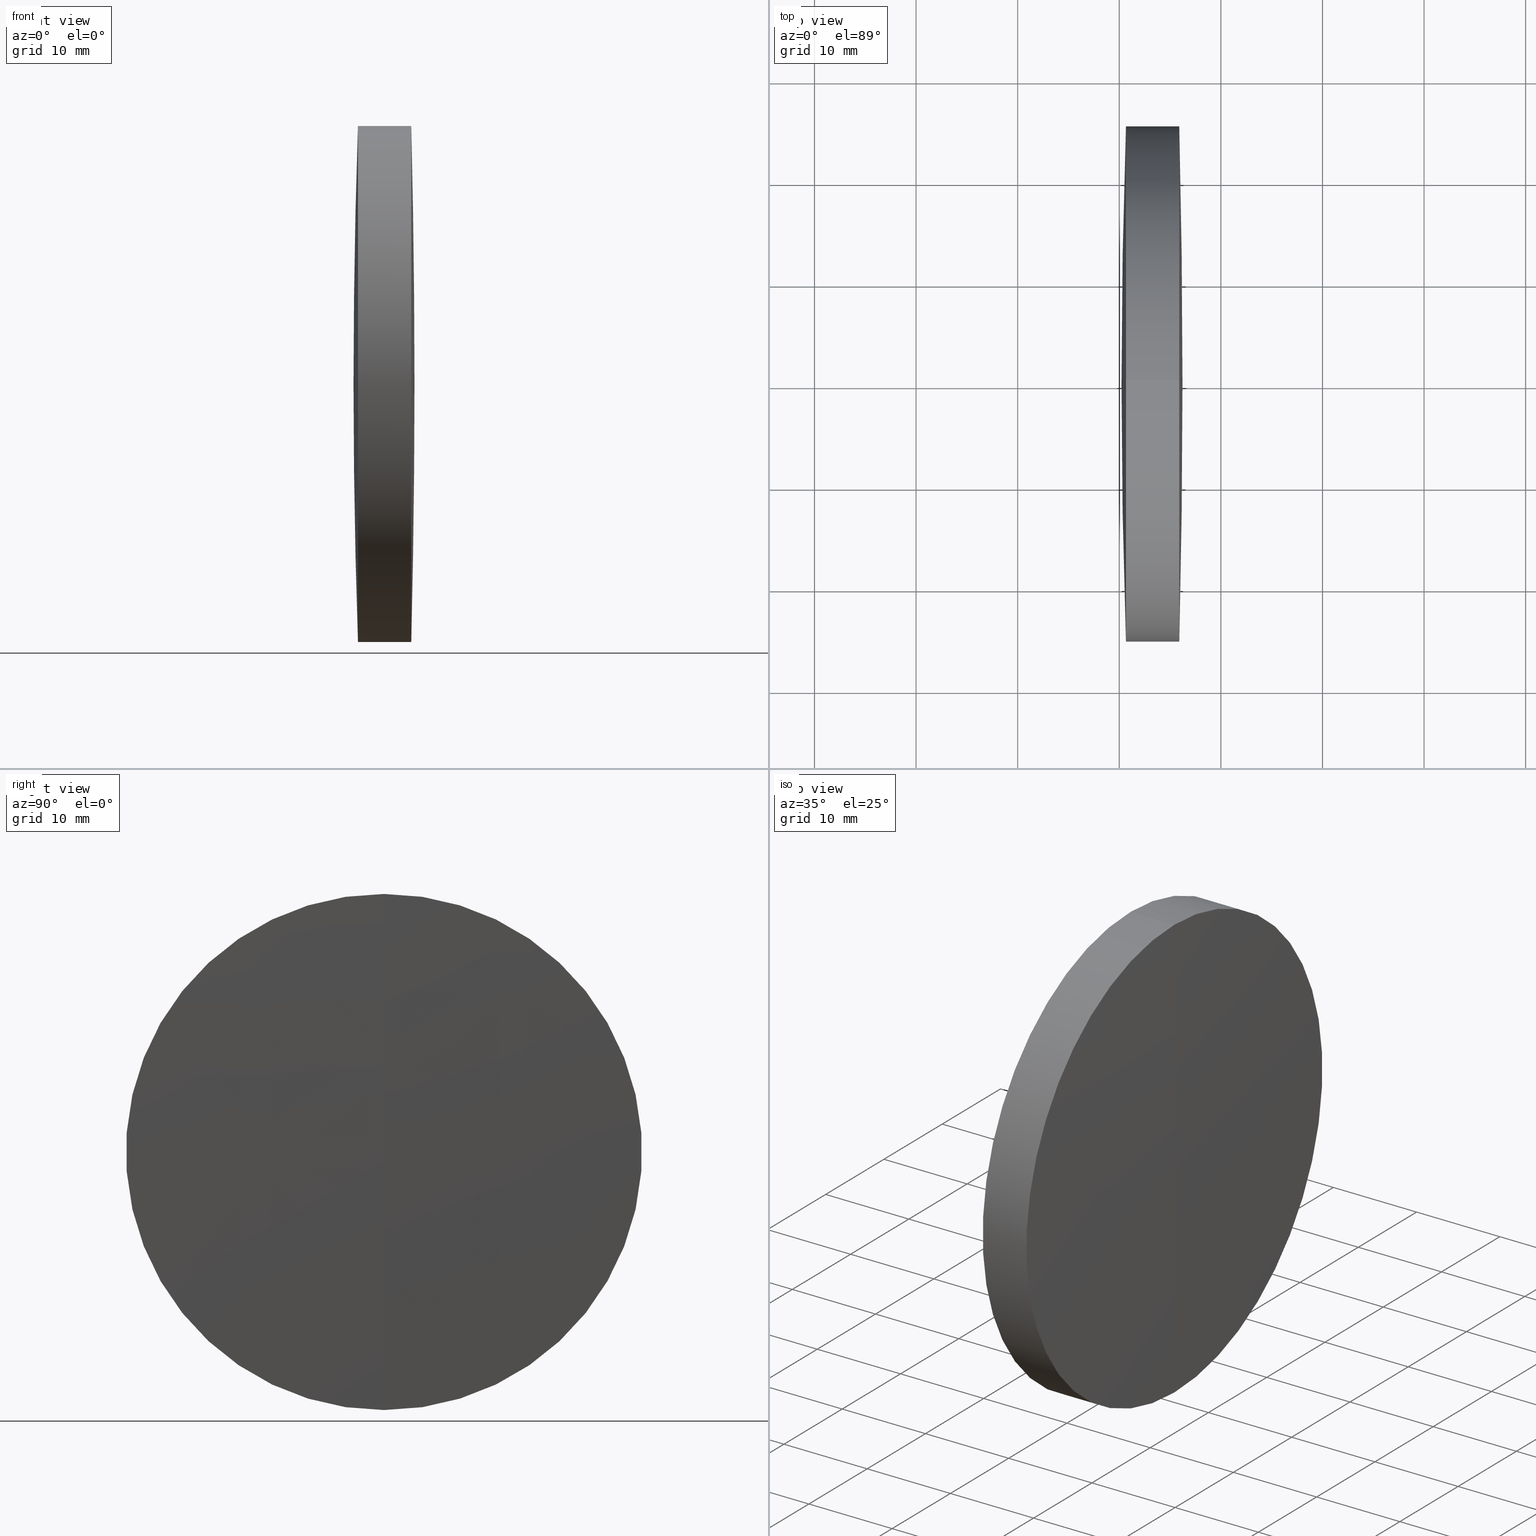
[diagram: canonical four-view strip — front | top / right | iso, engineering-drawing reading convention]
A machine part, canonical four-view strip (front | top / right | iso — engineering-drawing reading convention). The complete STEP part file that produces these views, byte-faithful:
ISO-10303-21;
HEADER;
FILE_DESCRIPTION (( 'STEP AP214' ),
    '1' );
FILE_NAME ('145095.STEP',
    '2019-05-28T01:34:47',
    ( 'user' ),
    ( '΢���й�' ),
    'SwSTEP 2.0',
    'SolidWorks 2016',
    '' );
FILE_SCHEMA (( 'AUTOMOTIVE_DESIGN' ));
ENDSEC;

DATA;
#1 = DIRECTION ( 'NONE',  ( 0.0000000000000000000, 0.0000000000000000000, -1.000000000000000000 ) ) ;
#2 = EDGE_LOOP ( 'NONE', ( #34, #65, #285, #180 ) ) ;
#3 = FACE_OUTER_BOUND ( 'NONE', #263, .T. ) ;
#4 = APPLICATION_CONTEXT ( 'automotive_design' ) ;
#5 =( LENGTH_UNIT ( ) NAMED_UNIT ( * ) SI_UNIT ( .MILLI., .METRE. ) );
#6 = CIRCLE ( 'NONE', #135, 738.4999999999998900 ) ;
#7 = AXIS2_PLACEMENT_3D ( 'NONE', #17, #173, #337 ) ;
#8 = VERTEX_POINT ( 'NONE', #244 ) ;
#9 = FACE_OUTER_BOUND ( 'NONE', #208, .T. ) ;
#10 = CIRCLE ( 'NONE', #313, 398.1000000000000200 ) ;
#11 = CIRCLE ( 'NONE', #64, 398.1000000000000200 ) ;
#12 = ORIENTED_EDGE ( 'NONE', *, *, #269, .F. ) ;
#13 =( GEOMETRIC_REPRESENTATION_CONTEXT ( 3 ) GLOBAL_UNCERTAINTY_ASSIGNED_CONTEXT ( ( #240 ) ) GLOBAL_UNIT_ASSIGNED_CONTEXT ( ( #5, #160, #320 ) ) REPRESENTATION_CONTEXT ( 'NONE', 'WORKASPACE' ) );
#14 = SURFACE_STYLE_FILL_AREA ( #214 ) ;
#15 = LINE ( 'NONE', #83, #294 ) ;
#16 = ORIENTED_EDGE ( 'NONE', *, *, #238, .F. ) ;
#17 = CARTESIAN_POINT ( 'NONE',  ( 1348.721575906123500, 0.0000000000000000000, -2.385224689797379100E-012 ) ) ;
#18 = DIRECTION ( 'NONE',  ( 0.0000000000000000000, 0.0000000000000000000, 1.000000000000000000 ) ) ;
#19 = DIRECTION ( 'NONE',  ( 0.0000000000000000000, 0.0000000000000000000, 1.000000000000000000 ) ) ;
#20 = SPHERICAL_SURFACE ( 'NONE', #46, 398.1000000000000200 ) ;
#21 = AXIS2_PLACEMENT_3D ( 'NONE', #233, #176, #120 ) ;
#22 = CARTESIAN_POINT ( 'NONE',  ( 616.2215759061234600, 0.0000000000000000000, 6.265905347837432300E-014 ) ) ;
#23 =( LENGTH_UNIT ( ) NAMED_UNIT ( * ) SI_UNIT ( .MILLI., .METRE. ) );
#24 = CARTESIAN_POINT ( 'NONE',  ( 216.1215759061234400, 0.0000000000000000000, 8.672359698865987600E-014 ) ) ;
#25 = FILL_AREA_STYLE ('',( #203 ) ) ;
#26 = DIRECTION ( 'NONE',  ( -1.000000000000000000, -0.0000000000000000000, -0.0000000000000000000 ) ) ;
#27 = AXIS2_PLACEMENT_3D ( 'NONE', #308, #48, #19 ) ;
#28 = SURFACE_SIDE_STYLE ('',( #14 ) ) ;
#29 = ORIENTED_EDGE ( 'NONE', *, *, #216, .T. ) ;
#30 = SURFACE_STYLE_FILL_AREA ( #25 ) ;
#31 = CARTESIAN_POINT ( 'NONE',  ( 615.9062923119943200, 0.0000000000000000000, 25.39999999999895800 ) ) ;
#32 = AXIS2_PLACEMENT_3D ( 'NONE', #327, #325, #301 ) ;
#33 = ADVANCED_FACE ( 'NONE', ( #127 ), #144, .T. ) ;
#34 = ORIENTED_EDGE ( 'NONE', *, *, #223, .F. ) ;
#35 = AXIS2_PLACEMENT_3D ( 'NONE', #117, #282, #96 ) ;
#36 = EDGE_LOOP ( 'NONE', ( #290, #209, #330 ) ) ;
#37 = VECTOR ( 'NONE', #241, 1000.000000000000000 ) ;
#38 = DIRECTION ( 'NONE',  ( 0.0000000000000000000, 1.000000000000000000, 0.0000000000000000000 ) ) ;
#39 = SURFACE_STYLE_USAGE ( .BOTH. , #178 ) ;
#40 = STYLED_ITEM ( 'NONE', ( #94 ), #302 ) ;
#41 = CARTESIAN_POINT ( 'NONE',  ( 613.4104506559709800, 3.110602869834183000E-015, -25.39999999999914600 ) ) ;
#42 = ORIENTED_EDGE ( 'NONE', *, *, #223, .T. ) ;
#43 = CARTESIAN_POINT ( 'NONE',  ( 610.6585094951291200, 3.110602869834124200E-015, -25.40000000000113200 ) ) ;
#44 = DIRECTION ( 'NONE',  ( -1.000000000000000000, -0.0000000000000000000, -0.0000000000000000000 ) ) ;
#45 = DIRECTION ( 'NONE',  ( -1.000000000000000000, -0.0000000000000000000, -0.0000000000000000000 ) ) ;
#46 = AXIS2_PLACEMENT_3D ( 'NONE', #54, #295, #267 ) ;
#47 = DIRECTION ( 'NONE',  ( 0.0000000000000000000, 0.0000000000000000000, 1.000000000000000000 ) ) ;
#48 = DIRECTION ( 'NONE',  ( -1.000000000000000000, -0.0000000000000000000, -0.0000000000000000000 ) ) ;
#49 = CARTESIAN_POINT ( 'NONE',  ( 614.2215759061234600, 0.0000000000000000000, 1.111001915256879400E-013 ) ) ;
#50 = SURFACE_STYLE_USAGE ( .BOTH. , #211 ) ;
#51 = CIRCLE ( 'NONE', #109, 1023.299999999999800 ) ;
#52 = EDGE_LOOP ( 'NONE', ( #187, #113, #225 ) ) ;
#53 = VERTEX_POINT ( 'NONE', #299 ) ;
#54 = CARTESIAN_POINT ( 'NONE',  ( 216.1215759061234400, 0.0000000000000000000, 8.672359698865987600E-014 ) ) ;
#55 = PRODUCT_DEFINITION_SHAPE ( 'NONE', 'NONE',  #259 ) ;
#56 = CARTESIAN_POINT ( 'NONE',  ( -407.0784240938763800, 0.0000000000000000000, 0.0000000000000000000 ) ) ;
#57 = ADVANCED_FACE ( 'NONE', ( #9 ), #77, .F. ) ;
#58 = AXIS2_PLACEMENT_3D ( 'NONE', #73, #234, #47 ) ;
#59 = ORIENTED_EDGE ( 'NONE', *, *, #80, .T. ) ;
#60 = EDGE_LOOP ( 'NONE', ( #309, #42, #16, #99 ) ) ;
#61 = CIRCLE ( 'NONE', #74, 1023.299999999999800 ) ;
#62 = PRESENTATION_LAYER_ASSIGNMENT (  '', '', ( #40 ) ) ;
#63 = CYLINDRICAL_SURFACE ( 'NONE', #168, 25.39999999999922100 ) ;
#64 = AXIS2_PLACEMENT_3D ( 'NONE', #247, #92, #193 ) ;
#65 = ORIENTED_EDGE ( 'NONE', *, *, #196, .T. ) ;
#66 = ORIENTED_EDGE ( 'NONE', *, *, #110, .F. ) ;
#67 = LINE ( 'NONE', #286, #273 ) ;
#68 =( NAMED_UNIT ( * ) PLANE_ANGLE_UNIT ( ) SI_UNIT ( $, .RADIAN. ) );
#69 = FACE_OUTER_BOUND ( 'NONE', #258, .T. ) ;
#70 = DIRECTION ( 'NONE',  ( -0.0000000000000000000, 1.000000000000000000, 1.224646799147353200E-016 ) ) ;
#71 =( NAMED_UNIT ( * ) SI_UNIT ( $, .STERADIAN. ) SOLID_ANGLE_UNIT ( ) );
#72 = DIRECTION ( 'NONE',  ( 0.0000000000000000000, 0.0000000000000000000, 1.000000000000000000 ) ) ;
#73 = CARTESIAN_POINT ( 'NONE',  ( 613.4104506559709800, 0.0000000000000000000, 0.0000000000000000000 ) ) ;
#74 = AXIS2_PLACEMENT_3D ( 'NONE', #200, #123, #289 ) ;
#75 = VERTEX_POINT ( 'NONE', #31 ) ;
#76 = DIRECTION ( 'NONE',  ( 0.0000000000000000000, 1.000000000000000000, 0.0000000000000000000 ) ) ;
#77 = SPHERICAL_SURFACE ( 'NONE', #304, 398.1000000000000200 ) ;
#78 = CARTESIAN_POINT ( 'NONE',  ( 1348.721575906123500, 0.0000000000000000000, -2.385224689797379100E-012 ) ) ;
#79 = EDGE_LOOP ( 'NONE', ( #118, #138, #91 ) ) ;
#80 = EDGE_CURVE ( 'NONE', #75, #8, #291, .T. ) ;
#81 =( NAMED_UNIT ( * ) PLANE_ANGLE_UNIT ( ) SI_UNIT ( $, .RADIAN. ) );
#82 = MANIFOLD_SOLID_BREP ( '��ת3', #334 ) ;
#83 = CARTESIAN_POINT ( 'NONE',  ( 124.5233095260452400, 0.0000000000000000000, 25.39999999999922100 ) ) ;
#84 = FACE_OUTER_BOUND ( 'NONE', #79, .T. ) ;
#85 = MECHANICAL_DESIGN_GEOMETRIC_PRESENTATION_REPRESENTATION (  '', ( #40 ), #98 ) ;
#86 = ORIENTED_EDGE ( 'NONE', *, *, #196, .F. ) ;
#87 = DIRECTION ( 'NONE',  ( -1.000000000000000000, -0.0000000000000000000, -0.0000000000000000000 ) ) ;
#88 = ADVANCED_FACE ( 'NONE', ( #319 ), #20, .F. ) ;
#89 = DIRECTION ( 'NONE',  ( 0.0000000000000000000, 1.000000000000000000, 0.0000000000000000000 ) ) ;
#90 = AXIS2_PLACEMENT_3D ( 'NONE', #212, #26, #239 ) ;
#91 = ORIENTED_EDGE ( 'NONE', *, *, #175, .F. ) ;
#92 = DIRECTION ( 'NONE',  ( 0.0000000000000000000, -1.000000000000000000, 0.0000000000000000000 ) ) ;
#93 = AXIS2_PLACEMENT_3D ( 'NONE', #307, #255, #18 ) ;
#94 = PRESENTATION_STYLE_ASSIGNMENT (( #39 ) ) ;
#95 = EDGE_CURVE ( 'NONE', #215, #248, #15, .T. ) ;
#96 = DIRECTION ( 'NONE',  ( 0.0000000000000000000, 0.0000000000000000000, 1.000000000000000000 ) ) ;
#97 = DIRECTION ( 'NONE',  ( -1.000000000000000000, -0.0000000000000000000, -0.0000000000000000000 ) ) ;
#98 =( GEOMETRIC_REPRESENTATION_CONTEXT ( 3 ) GLOBAL_UNCERTAINTY_ASSIGNED_CONTEXT ( ( #172 ) ) GLOBAL_UNIT_ASSIGNED_CONTEXT ( ( #230, #68, #257 ) ) REPRESENTATION_CONTEXT ( 'NONE', 'WORKASPACE' ) );
#99 = ORIENTED_EDGE ( 'NONE', *, *, #95, .F. ) ;
#100 = COLOUR_RGB ( '',1.000000000000000000, 1.000000000000000000, 1.000000000000000000 ) ;
#101 = CARTESIAN_POINT ( 'NONE',  ( 613.4104506559709800, 0.0000000000000000000, 0.0000000000000000000 ) ) ;
#102 = AXIS2_PLACEMENT_3D ( 'NONE', #24, #181, #1 ) ;
#103 = DIRECTION ( 'NONE',  ( -1.000000000000000000, -0.0000000000000000000, -0.0000000000000000000 ) ) ;
#104 = FACE_OUTER_BOUND ( 'NONE', #296, .T. ) ;
#105 = DIRECTION ( 'NONE',  ( 0.0000000000000000000, -1.000000000000000000, 0.0000000000000000000 ) ) ;
#106 = VERTEX_POINT ( 'NONE', #185 ) ;
#107 = CARTESIAN_POINT ( 'NONE',  ( -0.5519199926577972300, 0.0000000000000000000, 25.39999999999916000 ) ) ;
#108 = ADVANCED_FACE ( 'NONE', ( #224 ), #284, .T. ) ;
#109 = AXIS2_PLACEMENT_3D ( 'NONE', #262, #105, #152 ) ;
#110 = EDGE_CURVE ( 'NONE', #106, #8, #11, .T. ) ;
#111 = PRESENTATION_STYLE_ASSIGNMENT (( #188 ) ) ;
#112 = UNCERTAINTY_MEASURE_WITH_UNIT (LENGTH_MEASURE( 1.000000000000000100E-005 ), #23, 'distance_accuracy_value', 'NONE');
#113 = ORIENTED_EDGE ( 'NONE', *, *, #254, .T. ) ;
#114 = AXIS2_PLACEMENT_3D ( 'NONE', #219, #192, #222 ) ;
#115 = ORIENTED_EDGE ( 'NONE', *, *, #175, .T. ) ;
#116 = VECTOR ( 'NONE', #171, 1000.000000000000000 ) ;
#117 = CARTESIAN_POINT ( 'NONE',  ( 610.6585094951291200, 0.0000000000000000000, 0.0000000000000000000 ) ) ;
#118 = ORIENTED_EDGE ( 'NONE', *, *, #238, .T. ) ;
#119 = DIRECTION ( 'NONE',  ( 0.0000000000000000000, 0.0000000000000000000, 1.000000000000000000 ) ) ;
#120 = DIRECTION ( 'NONE',  ( 0.0000000000000000000, 0.0000000000000000000, 1.000000000000000000 ) ) ;
#121 = CARTESIAN_POINT ( 'NONE',  ( 216.1215759061234400, 0.0000000000000000000, 8.672359698865987600E-014 ) ) ;
#122 = DIRECTION ( 'NONE',  ( 0.0000000000000000000, 0.0000000000000000000, 1.000000000000000000 ) ) ;
#123 = DIRECTION ( 'NONE',  ( -0.0000000000000000000, 1.000000000000000000, 1.224646799147353200E-016 ) ) ;
#124 = AXIS2_PLACEMENT_3D ( 'NONE', #146, #38, #204 ) ;
#125 = EDGE_LOOP ( 'NONE', ( #29, #272, #321, #137 ) ) ;
#126 = DIRECTION ( 'NONE',  ( 0.0000000000000000000, 0.0000000000000000000, 1.000000000000000000 ) ) ;
#127 = FACE_OUTER_BOUND ( 'NONE', #36, .T. ) ;
#128 = CIRCLE ( 'NONE', #58, 25.39999999999921700 ) ;
#129 = EDGE_CURVE ( 'NONE', #106, #242, #213, .T. ) ;
#130 = DIRECTION ( 'NONE',  ( 0.0000000000000000000, 0.0000000000000000000, 1.000000000000000000 ) ) ;
#131 = STYLED_ITEM ( 'NONE', ( #169 ), #338 ) ;
#132 = CIRCLE ( 'NONE', #153, 25.39999999999935600 ) ;
#133 = DIRECTION ( 'NONE',  ( 0.0000000000000000000, 0.0000000000000000000, 1.000000000000000000 ) ) ;
#134 = ADVANCED_FACE ( 'NONE', ( #84 ), #140, .T. ) ;
#135 = AXIS2_PLACEMENT_3D ( 'NONE', #206, #344, #154 ) ;
#136 = ORIENTED_EDGE ( 'NONE', *, *, #199, .T. ) ;
#137 = ORIENTED_EDGE ( 'NONE', *, *, #80, .F. ) ;
#138 = ORIENTED_EDGE ( 'NONE', *, *, #231, .T. ) ;
#139 = SPHERICAL_SURFACE ( 'NONE', #21, 1023.299999999999800 ) ;
#140 = SPHERICAL_SURFACE ( 'NONE', #114, 738.4999999999998900 ) ;
#141 = ORIENTED_EDGE ( 'NONE', *, *, #287, .T. ) ;
#142 = ORIENTED_EDGE ( 'NONE', *, *, #165, .T. ) ;
#143 = AXIS2_PLACEMENT_3D ( 'NONE', #101, #97, #119 ) ;
#144 = SPHERICAL_SURFACE ( 'NONE', #329, 1023.299999999999800 ) ;
#145 = EDGE_CURVE ( 'NONE', #174, #215, #147, .T. ) ;
#146 = CARTESIAN_POINT ( 'NONE',  ( 216.1215759061234400, 0.0000000000000000000, 8.672359698865987600E-014 ) ) ;
#147 = CIRCLE ( 'NONE', #102, 398.1000000000000200 ) ;
#148 = VERTEX_POINT ( 'NONE', #221 ) ;
#149 = PRESENTATION_LAYER_ASSIGNMENT (  '', '', ( #131 ) ) ;
#150 = DIRECTION ( 'NONE',  ( -1.000000000000000000, -0.0000000000000000000, -0.0000000000000000000 ) ) ;
#151 = CARTESIAN_POINT ( 'NONE',  ( 613.4104506559709800, 0.0000000000000000000, 0.0000000000000000000 ) ) ;
#152 = DIRECTION ( 'NONE',  ( 0.0000000000000000000, 0.0000000000000000000, -1.000000000000000000 ) ) ;
#153 = AXIS2_PLACEMENT_3D ( 'NONE', #236, #156, #346 ) ;
#154 = DIRECTION ( 'NONE',  ( 0.0000000000000000000, 0.0000000000000000000, -1.000000000000000000 ) ) ;
#155 = ORIENTED_EDGE ( 'NONE', *, *, #129, .F. ) ;
#156 = DIRECTION ( 'NONE',  ( -1.000000000000000000, -0.0000000000000000000, -0.0000000000000000000 ) ) ;
#157 = CARTESIAN_POINT ( 'NONE',  ( 124.5233095260452400, 0.0000000000000000000, 0.0000000000000000000 ) ) ;
#158 = APPLICATION_PROTOCOL_DEFINITION ( 'draft international standard', 'automotive_design', 1998, #182 ) ;
#159 = PRODUCT_CONTEXT ( 'NONE', #182, 'mechanical' ) ;
#160 =( NAMED_UNIT ( * ) PLANE_ANGLE_UNIT ( ) SI_UNIT ( $, .RADIAN. ) );
#161 = DIRECTION ( 'NONE',  ( 0.0000000000000000000, 0.0000000000000000000, 1.000000000000000000 ) ) ;
#162 = ADVANCED_FACE ( 'NONE', ( #276 ), #63, .T. ) ;
#163 = SURFACE_STYLE_FILL_AREA ( #343 ) ;
#164 = AXIS2_PLACEMENT_3D ( 'NONE', #283, #45, #345 ) ;
#165 = EDGE_CURVE ( 'NONE', #242, #8, #132, .T. ) ;
#166 = MECHANICAL_DESIGN_GEOMETRIC_PRESENTATION_REPRESENTATION (  '', ( #131 ), #189 ) ;
#167 = ORIENTED_EDGE ( 'NONE', *, *, #129, .T. ) ;
#168 = AXIS2_PLACEMENT_3D ( 'NONE', #157, #316, #126 ) ;
#169 = PRESENTATION_STYLE_ASSIGNMENT (( #50 ) ) ;
#170 = CIRCLE ( 'NONE', #164, 25.39999999999922800 ) ;
#171 = DIRECTION ( 'NONE',  ( -1.000000000000000000, -0.0000000000000000000, -0.0000000000000000000 ) ) ;
#172 = UNCERTAINTY_MEASURE_WITH_UNIT (LENGTH_MEASURE( 1.000000000000000100E-005 ), #230, 'distance_accuracy_value', 'NONE');
#173 = DIRECTION ( 'NONE',  ( -0.0000000000000000000, 1.000000000000000000, 1.224646799147353200E-016 ) ) ;
#174 = VERTEX_POINT ( 'NONE', #49 ) ;
#175 = EDGE_CURVE ( 'NONE', #248, #336, #6, .T. ) ;
#176 = DIRECTION ( 'NONE',  ( 0.0000000000000000000, 1.000000000000000000, 0.0000000000000000000 ) ) ;
#177 = CARTESIAN_POINT ( 'NONE',  ( 610.2215759061235800, 0.0000000000000000000, -2.340004606738863500E-012 ) ) ;
#178 = SURFACE_SIDE_STYLE ('',( #163 ) ) ;
#179 = AXIS2_PLACEMENT_3D ( 'NONE', #121, #76, #340 ) ;
#180 = ORIENTED_EDGE ( 'NONE', *, *, #293, .F. ) ;
#181 = DIRECTION ( 'NONE',  ( 0.0000000000000000000, -1.000000000000000000, 0.0000000000000000000 ) ) ;
#182 = APPLICATION_CONTEXT ( 'automotive_design' ) ;
#183 = EDGE_CURVE ( 'NONE', #148, #75, #201, .T. ) ;
#184 = APPLICATION_PROTOCOL_DEFINITION ( 'draft international standard', 'automotive_design', 1998, #4 ) ;
#185 = CARTESIAN_POINT ( 'NONE',  ( 614.2215759061234600, 0.0000000000000000000, 1.111001915256879400E-013 ) ) ;
#186 = ORIENTED_EDGE ( 'NONE', *, *, #165, .F. ) ;
#187 = ORIENTED_EDGE ( 'NONE', *, *, #274, .F. ) ;
#188 = SURFACE_STYLE_USAGE ( .BOTH. , #28 ) ;
#189 =( GEOMETRIC_REPRESENTATION_CONTEXT ( 3 ) GLOBAL_UNCERTAINTY_ASSIGNED_CONTEXT ( ( #275 ) ) GLOBAL_UNIT_ASSIGNED_CONTEXT ( ( #237, #81, #264 ) ) REPRESENTATION_CONTEXT ( 'NONE', 'WORKASPACE' ) );
#190 = ADVANCED_FACE ( 'NONE', ( #69 ), #268, .T. ) ;
#191 = AXIS2_PLACEMENT_3D ( 'NONE', #288, #103, #261 ) ;
#192 = DIRECTION ( 'NONE',  ( 0.0000000000000000000, 1.000000000000000000, 0.0000000000000000000 ) ) ;
#193 = DIRECTION ( 'NONE',  ( 0.0000000000000000000, 0.0000000000000000000, -1.000000000000000000 ) ) ;
#194 = CYLINDRICAL_SURFACE ( 'NONE', #93, 25.39999999999922100 ) ;
#195 = VERTEX_POINT ( 'NONE', #22 ) ;
#196 = EDGE_CURVE ( 'NONE', #53, #215, #228, .T. ) ;
#197 =( GEOMETRIC_REPRESENTATION_CONTEXT ( 3 ) GLOBAL_UNCERTAINTY_ASSIGNED_CONTEXT ( ( #112 ) ) GLOBAL_UNIT_ASSIGNED_CONTEXT ( ( #23, #207, #71 ) ) REPRESENTATION_CONTEXT ( 'NONE', 'WORKASPACE' ) );
#198 = CIRCLE ( 'NONE', #35, 25.39999999999922800 ) ;
#199 = EDGE_CURVE ( 'NONE', #174, #53, #10, .T. ) ;
#200 = CARTESIAN_POINT ( 'NONE',  ( -407.0784240938763800, 0.0000000000000000000, 0.0000000000000000000 ) ) ;
#201 = CIRCLE ( 'NONE', #191, 25.39999999999895800 ) ;
#202 = CARTESIAN_POINT ( 'NONE',  ( -0.5519199926577972300, 3.110602869834174300E-015, -25.39999999999916000 ) ) ;
#203 = FILL_AREA_STYLE_COLOUR ( '', #100 ) ;
#204 = DIRECTION ( 'NONE',  ( 0.0000000000000000000, 0.0000000000000000000, 1.000000000000000000 ) ) ;
#205 = AXIS2_PLACEMENT_3D ( 'NONE', #151, #312, #122 ) ;
#206 = CARTESIAN_POINT ( 'NONE',  ( 1348.721575906123500, 0.0000000000000000000, -2.385224689797379100E-012 ) ) ;
#207 =( NAMED_UNIT ( * ) PLANE_ANGLE_UNIT ( ) SI_UNIT ( $, .RADIAN. ) );
#208 = EDGE_LOOP ( 'NONE', ( #155, #332, #141 ) ) ;
#209 = ORIENTED_EDGE ( 'NONE', *, *, #274, .T. ) ;
#210 = CIRCLE ( 'NONE', #7, 738.4999999999998900 ) ;
#211 = SURFACE_SIDE_STYLE ('',( #30 ) ) ;
#212 = CARTESIAN_POINT ( 'NONE',  ( -0.5519199926577972300, 0.0000000000000000000, 0.0000000000000000000 ) ) ;
#213 = CIRCLE ( 'NONE', #32, 398.1000000000000200 ) ;
#214 = FILL_AREA_STYLE ('',( #297 ) ) ;
#215 = VERTEX_POINT ( 'NONE', #342 ) ;
#216 = EDGE_CURVE ( 'NONE', #75, #148, #279, .T. ) ;
#217 = ADVANCED_FACE ( 'NONE', ( #281 ), #139, .T. ) ;
#218 = DIRECTION ( 'NONE',  ( 0.0000000000000000000, 1.000000000000000000, 0.0000000000000000000 ) ) ;
#219 = CARTESIAN_POINT ( 'NONE',  ( 1348.721575906123500, 0.0000000000000000000, -2.385224689797379100E-012 ) ) ;
#220 = ORIENTED_EDGE ( 'NONE', *, *, #293, .T. ) ;
#221 = CARTESIAN_POINT ( 'NONE',  ( 615.9062923119943200, 3.110602869834161700E-015, -25.39999999999895800 ) ) ;
#222 = DIRECTION ( 'NONE',  ( 0.0000000000000000000, 0.0000000000000000000, 1.000000000000000000 ) ) ;
#223 = EDGE_CURVE ( 'NONE', #53, #280, #67, .T. ) ;
#224 = FACE_OUTER_BOUND ( 'NONE', #347, .T. ) ;
#225 = ORIENTED_EDGE ( 'NONE', *, *, #216, .F. ) ;
#226 = PRODUCT ( '145095', '145095', '', ( #159 ) ) ;
#227 = COLOUR_RGB ( '',1.000000000000000000, 1.000000000000000000, 1.000000000000000000 ) ;
#228 = CIRCLE ( 'NONE', #205, 25.39999999999921700 ) ;
#229 = CARTESIAN_POINT ( 'NONE',  ( 610.6585094951291200, 0.0000000000000000000, 25.39999999999875200 ) ) ;
#230 =( LENGTH_UNIT ( ) NAMED_UNIT ( * ) SI_UNIT ( .MILLI., .METRE. ) );
#231 = EDGE_CURVE ( 'NONE', #280, #336, #210, .T. ) ;
#232 = DIRECTION ( 'NONE',  ( 0.0000000000000000000, -1.224646799147353200E-016, 1.000000000000000000 ) ) ;
#233 = CARTESIAN_POINT ( 'NONE',  ( -407.0784240938763800, 0.0000000000000000000, 0.0000000000000000000 ) ) ;
#234 = DIRECTION ( 'NONE',  ( -1.000000000000000000, -0.0000000000000000000, -0.0000000000000000000 ) ) ;
#235 = CYLINDRICAL_SURFACE ( 'NONE', #27, 25.39999999999916000 ) ;
#236 = CARTESIAN_POINT ( 'NONE',  ( 613.4104506559709800, 0.0000000000000000000, 0.0000000000000000000 ) ) ;
#237 =( LENGTH_UNIT ( ) NAMED_UNIT ( * ) SI_UNIT ( .MILLI., .METRE. ) );
#238 = EDGE_CURVE ( 'NONE', #248, #280, #198, .T. ) ;
#239 = DIRECTION ( 'NONE',  ( 0.0000000000000000000, 0.0000000000000000000, 1.000000000000000000 ) ) ;
#240 = UNCERTAINTY_MEASURE_WITH_UNIT (LENGTH_MEASURE( 1.000000000000000100E-005 ), #5, 'distance_accuracy_value', 'NONE');
#241 = DIRECTION ( 'NONE',  ( -1.000000000000000000, -0.0000000000000000000, -0.0000000000000000000 ) ) ;
#242 = VERTEX_POINT ( 'NONE', #41 ) ;
#243 = AXIS2_PLACEMENT_3D ( 'NONE', #292, #130, #318 ) ;
#244 = CARTESIAN_POINT ( 'NONE',  ( 613.4104506559709800, 0.0000000000000000000, 25.39999999999923100 ) ) ;
#245 = ADVANCED_FACE ( 'NONE', ( #335 ), #194, .T. ) ;
#246 = COLOUR_RGB ( '',1.000000000000000000, 1.000000000000000000, 1.000000000000000000 ) ;
#247 = CARTESIAN_POINT ( 'NONE',  ( 216.1215759061234400, 0.0000000000000000000, 8.672359698865987600E-014 ) ) ;
#248 = VERTEX_POINT ( 'NONE', #229 ) ;
#249 = EDGE_CURVE ( 'NONE', #148, #242, #265, .T. ) ;
#250 = PRODUCT_DEFINITION_CONTEXT ( 'detailed design', #4, 'design' ) ;
#251 = CLOSED_SHELL ( 'NONE', ( #322, #162, #134, #190, #245, #270 ) ) ;
#252 = PRODUCT_RELATED_PRODUCT_CATEGORY ( 'part', '', ( #226 ) ) ;
#253 = FACE_OUTER_BOUND ( 'NONE', #125, .T. ) ;
#254 = EDGE_CURVE ( 'NONE', #195, #148, #61, .T. ) ;
#255 = DIRECTION ( 'NONE',  ( -1.000000000000000000, -0.0000000000000000000, -0.0000000000000000000 ) ) ;
#256 = ORIENTED_EDGE ( 'NONE', *, *, #183, .T. ) ;
#257 =( NAMED_UNIT ( * ) SI_UNIT ( $, .STERADIAN. ) SOLID_ANGLE_UNIT ( ) );
#258 = EDGE_LOOP ( 'NONE', ( #266, #220, #115 ) ) ;
#259 = PRODUCT_DEFINITION ( 'δ֪', '', #277, #250 ) ;
#260 = CARTESIAN_POINT ( 'NONE',  ( 216.1215759061234400, 0.0000000000000000000, 8.672359698865987600E-014 ) ) ;
#261 = DIRECTION ( 'NONE',  ( 0.0000000000000000000, 0.0000000000000000000, 1.000000000000000000 ) ) ;
#262 = CARTESIAN_POINT ( 'NONE',  ( -407.0784240938763800, 0.0000000000000000000, 0.0000000000000000000 ) ) ;
#263 = EDGE_LOOP ( 'NONE', ( #303, #311, #86 ) ) ;
#264 =( NAMED_UNIT ( * ) SI_UNIT ( $, .STERADIAN. ) SOLID_ANGLE_UNIT ( ) );
#265 = LINE ( 'NONE', #202, #116 ) ;
#266 = ORIENTED_EDGE ( 'NONE', *, *, #231, .F. ) ;
#267 = DIRECTION ( 'NONE',  ( 0.0000000000000000000, 0.0000000000000000000, 1.000000000000000000 ) ) ;
#268 = SPHERICAL_SURFACE ( 'NONE', #300, 738.4999999999998900 ) ;
#269 = EDGE_CURVE ( 'NONE', #215, #53, #128, .T. ) ;
#270 = ADVANCED_FACE ( 'NONE', ( #3 ), #328, .T. ) ;
#271 = ORIENTED_EDGE ( 'NONE', *, *, #249, .F. ) ;
#272 = ORIENTED_EDGE ( 'NONE', *, *, #249, .T. ) ;
#273 = VECTOR ( 'NONE', #44, 1000.000000000000000 ) ;
#274 = EDGE_CURVE ( 'NONE', #195, #75, #51, .T. ) ;
#275 = UNCERTAINTY_MEASURE_WITH_UNIT (LENGTH_MEASURE( 1.000000000000000100E-005 ), #237, 'distance_accuracy_value', 'NONE');
#276 = FACE_OUTER_BOUND ( 'NONE', #60, .T. ) ;
#277 = PRODUCT_DEFINITION_FORMATION_WITH_SPECIFIED_SOURCE ( '�κ�', '', #226, .NOT_KNOWN. ) ;
#278 = ORIENTED_EDGE ( 'NONE', *, *, #145, .F. ) ;
#279 = CIRCLE ( 'NONE', #333, 25.39999999999895800 ) ;
#280 = VERTEX_POINT ( 'NONE', #43 ) ;
#281 = FACE_OUTER_BOUND ( 'NONE', #52, .T. ) ;
#282 = DIRECTION ( 'NONE',  ( -1.000000000000000000, -0.0000000000000000000, -0.0000000000000000000 ) ) ;
#283 = CARTESIAN_POINT ( 'NONE',  ( 610.6585094951291200, 0.0000000000000000000, 0.0000000000000000000 ) ) ;
#284 = CYLINDRICAL_SURFACE ( 'NONE', #90, 25.39999999999916000 ) ;
#285 = ORIENTED_EDGE ( 'NONE', *, *, #95, .T. ) ;
#286 = CARTESIAN_POINT ( 'NONE',  ( 124.5233095260452400, 3.110602869834181800E-015, -25.39999999999922100 ) ) ;
#287 = EDGE_CURVE ( 'NONE', #8, #242, #315, .T. ) ;
#288 = CARTESIAN_POINT ( 'NONE',  ( 615.9062923119943200, 0.0000000000000000000, 0.0000000000000000000 ) ) ;
#289 = DIRECTION ( 'NONE',  ( 0.0000000000000000000, -1.224646799147353200E-016, 1.000000000000000000 ) ) ;
#290 = ORIENTED_EDGE ( 'NONE', *, *, #254, .F. ) ;
#291 = LINE ( 'NONE', #107, #37 ) ;
#292 = CARTESIAN_POINT ( 'NONE',  ( 0.0000000000000000000, 0.0000000000000000000, 0.0000000000000000000 ) ) ;
#293 = EDGE_CURVE ( 'NONE', #280, #248, #170, .T. ) ;
#294 = VECTOR ( 'NONE', #87, 1000.000000000000000 ) ;
#295 = DIRECTION ( 'NONE',  ( 0.0000000000000000000, 1.000000000000000000, 0.0000000000000000000 ) ) ;
#296 = EDGE_LOOP ( 'NONE', ( #278, #136, #12 ) ) ;
#297 = FILL_AREA_STYLE_COLOUR ( '', #227 ) ;
#298 = ADVANCED_FACE ( 'NONE', ( #253 ), #235, .T. ) ;
#299 = CARTESIAN_POINT ( 'NONE',  ( 613.4104506559709800, 3.110602869834181400E-015, -25.39999999999921700 ) ) ;
#300 = AXIS2_PLACEMENT_3D ( 'NONE', #78, #314, #72 ) ;
#301 = DIRECTION ( 'NONE',  ( 0.0000000000000000000, -1.224646799147353200E-016, 1.000000000000000000 ) ) ;
#302 = MANIFOLD_SOLID_BREP ( '��ת1', #251 ) ;
#303 = ORIENTED_EDGE ( 'NONE', *, *, #199, .F. ) ;
#304 = AXIS2_PLACEMENT_3D ( 'NONE', #324, #218, #133 ) ;
#305 = SPHERICAL_SURFACE ( 'NONE', #179, 398.1000000000000200 ) ;
#306 = STYLED_ITEM ( 'NONE', ( #111 ), #82 ) ;
#307 = CARTESIAN_POINT ( 'NONE',  ( 124.5233095260452400, 0.0000000000000000000, 0.0000000000000000000 ) ) ;
#308 = CARTESIAN_POINT ( 'NONE',  ( -0.5519199926577972300, 0.0000000000000000000, 0.0000000000000000000 ) ) ;
#309 = ORIENTED_EDGE ( 'NONE', *, *, #269, .T. ) ;
#310 = DIRECTION ( 'NONE',  ( 0.0000000000000000000, 0.0000000000000000000, 1.000000000000000000 ) ) ;
#311 = ORIENTED_EDGE ( 'NONE', *, *, #145, .T. ) ;
#312 = DIRECTION ( 'NONE',  ( -1.000000000000000000, -0.0000000000000000000, -0.0000000000000000000 ) ) ;
#313 = AXIS2_PLACEMENT_3D ( 'NONE', #260, #70, #232 ) ;
#314 = DIRECTION ( 'NONE',  ( 0.0000000000000000000, 1.000000000000000000, 0.0000000000000000000 ) ) ;
#315 = CIRCLE ( 'NONE', #143, 25.39999999999935600 ) ;
#316 = DIRECTION ( 'NONE',  ( -1.000000000000000000, -0.0000000000000000000, -0.0000000000000000000 ) ) ;
#317 = FILL_AREA_STYLE_COLOUR ( '', #246 ) ;
#318 = DIRECTION ( 'NONE',  ( 1.000000000000000000, 0.0000000000000000000, 0.0000000000000000000 ) ) ;
#319 = FACE_OUTER_BOUND ( 'NONE', #326, .T. ) ;
#320 =( NAMED_UNIT ( * ) SI_UNIT ( $, .STERADIAN. ) SOLID_ANGLE_UNIT ( ) );
#321 = ORIENTED_EDGE ( 'NONE', *, *, #287, .F. ) ;
#322 = ADVANCED_FACE ( 'NONE', ( #104 ), #305, .T. ) ;
#323 = PRESENTATION_LAYER_ASSIGNMENT (  '', '', ( #306 ) ) ;
#324 = CARTESIAN_POINT ( 'NONE',  ( 216.1215759061234400, 0.0000000000000000000, 8.672359698865987600E-014 ) ) ;
#325 = DIRECTION ( 'NONE',  ( -0.0000000000000000000, 1.000000000000000000, 1.224646799147353200E-016 ) ) ;
#326 = EDGE_LOOP ( 'NONE', ( #66, #167, #142 ) ) ;
#327 = CARTESIAN_POINT ( 'NONE',  ( 216.1215759061234400, 0.0000000000000000000, 8.672359698865987600E-014 ) ) ;
#328 = SPHERICAL_SURFACE ( 'NONE', #124, 398.1000000000000200 ) ;
#329 = AXIS2_PLACEMENT_3D ( 'NONE', #56, #89, #161 ) ;
#330 = ORIENTED_EDGE ( 'NONE', *, *, #183, .F. ) ;
#331 = SHAPE_DEFINITION_REPRESENTATION ( #55, #338 ) ;
#332 = ORIENTED_EDGE ( 'NONE', *, *, #110, .T. ) ;
#333 = AXIS2_PLACEMENT_3D ( 'NONE', #339, #150, #310 ) ;
#334 = CLOSED_SHELL ( 'NONE', ( #217, #298, #88, #57, #108, #33 ) ) ;
#335 = FACE_OUTER_BOUND ( 'NONE', #2, .T. ) ;
#336 = VERTEX_POINT ( 'NONE', #177 ) ;
#337 = DIRECTION ( 'NONE',  ( 0.0000000000000000000, -1.224646799147353200E-016, 1.000000000000000000 ) ) ;
#338 = ADVANCED_BREP_SHAPE_REPRESENTATION ( '145095', ( #302, #82, #243 ), #197 ) ;
#339 = CARTESIAN_POINT ( 'NONE',  ( 615.9062923119943200, 0.0000000000000000000, 0.0000000000000000000 ) ) ;
#340 = DIRECTION ( 'NONE',  ( 0.0000000000000000000, 0.0000000000000000000, 1.000000000000000000 ) ) ;
#341 = MECHANICAL_DESIGN_GEOMETRIC_PRESENTATION_REPRESENTATION (  '', ( #306 ), #13 ) ;
#342 = CARTESIAN_POINT ( 'NONE',  ( 613.4104506559709800, 0.0000000000000000000, 25.39999999999921700 ) ) ;
#343 = FILL_AREA_STYLE ('',( #317 ) ) ;
#344 = DIRECTION ( 'NONE',  ( 0.0000000000000000000, -1.000000000000000000, 0.0000000000000000000 ) ) ;
#345 = DIRECTION ( 'NONE',  ( 0.0000000000000000000, 0.0000000000000000000, 1.000000000000000000 ) ) ;
#346 = DIRECTION ( 'NONE',  ( 0.0000000000000000000, 0.0000000000000000000, 1.000000000000000000 ) ) ;
#347 = EDGE_LOOP ( 'NONE', ( #271, #256, #59, #186 ) ) ;
ENDSEC;
END-ISO-10303-21;
